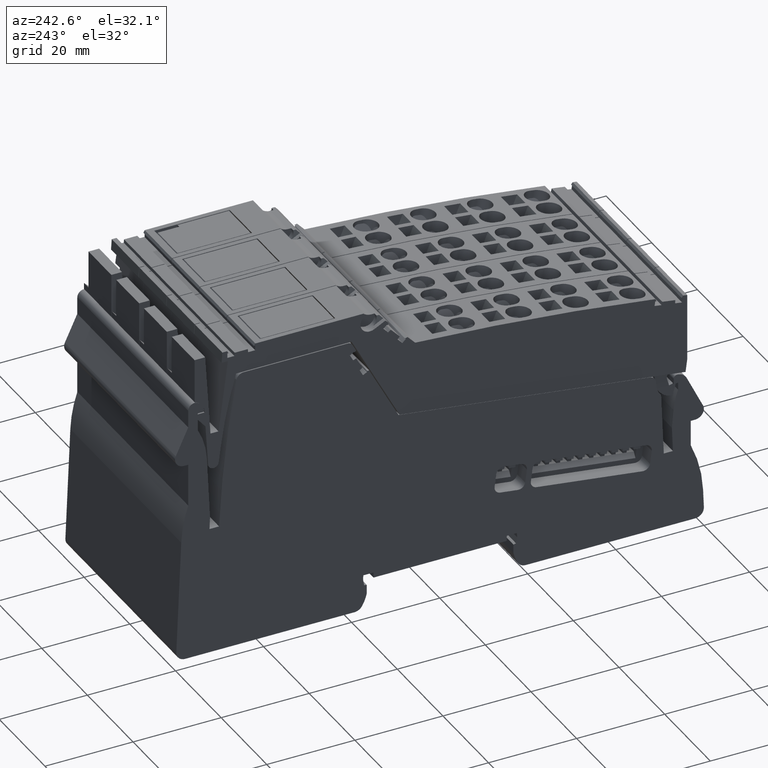
[diagram: clean part render]
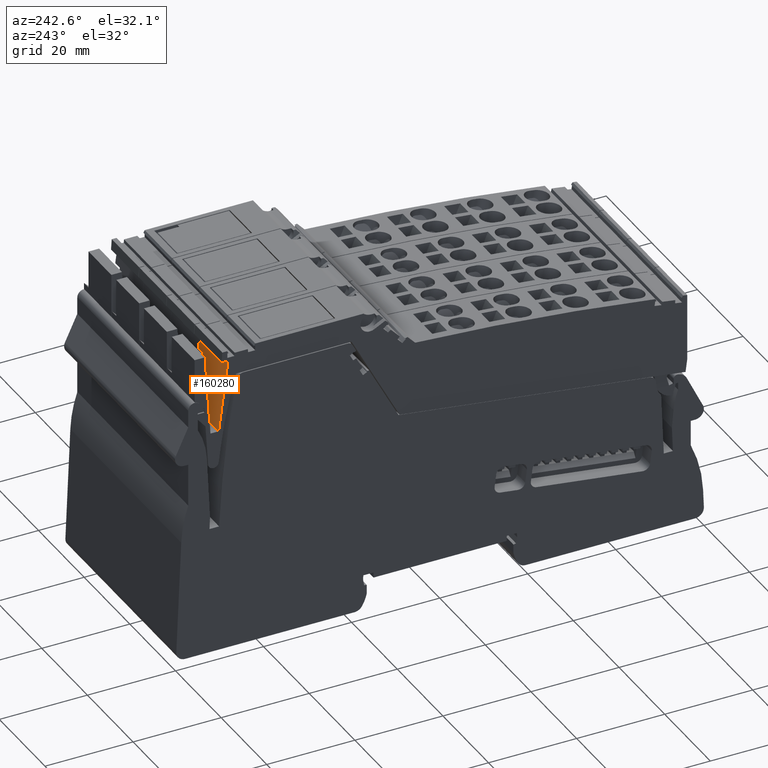
[diagram: same view with one face highlighted and labeled with its STEP entity id]
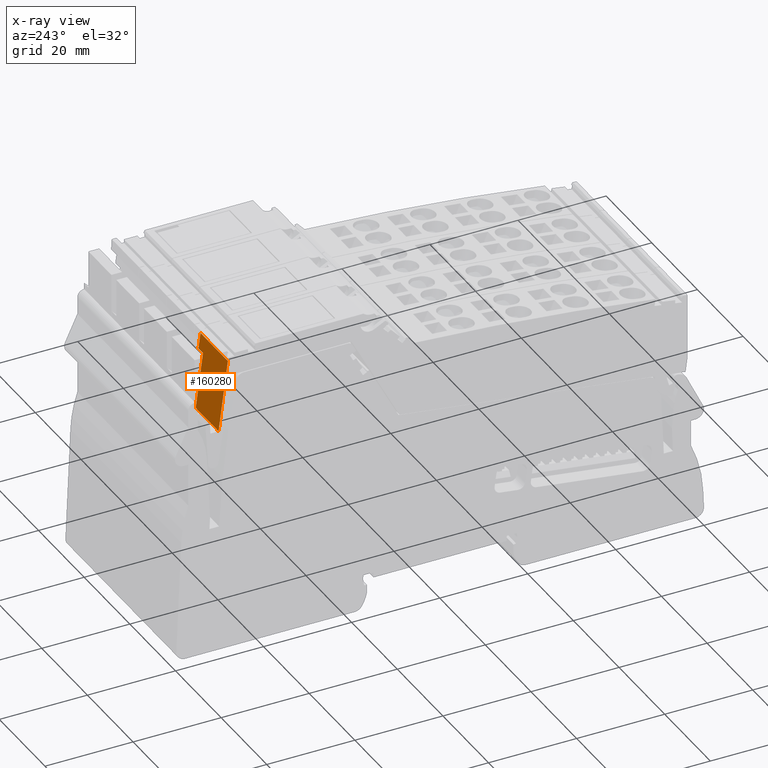
[diagram: x-ray of the same camera — body ghosted, the highlighted face saturated]
A machine part, auxiliary view. The second image highlights one B-rep face of the part: STEP entity #160280.
The next image is the same camera in x-ray: the body ghosted, the highlighted face saturated — about 0% of this face is hidden behind the body in this view.
In plain terms, the highlighted planar face has unit normal (0, -0.9914, -0.1305).
Its self-contained STEP definition (entity closure, byte-faithful):
#3600=CARTESIAN_POINT('',(119.632513868136,65.9866197234248,-47.425));
#3610=VERTEX_POINT('',#3600);
#3640=CARTESIAN_POINT('',(128.319817162075,-1.4210854715202E-14,-47.425)
);
#3650=DIRECTION('',(0.130526192220052,-0.99144486137381,0.));
#3660=VECTOR('',#3650,1.);
#3670=LINE('',#3640,#3660);
#3680=CARTESIAN_POINT('',(117.512908656979,82.0866197234256,-47.425));
#3690=VERTEX_POINT('',#3680);
#3700=EDGE_CURVE('',#3690,#3610,#3670,.T.);
#6730=CARTESIAN_POINT('',(117.512908656979,82.0866197234256,-35.425));
#6740=VERTEX_POINT('',#6730);
#6770=CARTESIAN_POINT('',(128.319817162075,-1.4210854715202E-14,-35.425)
);
#6780=DIRECTION('',(0.130526192220052,-0.99144486137381,0.));
#6790=VECTOR('',#6780,1.);
#6800=LINE('',#6770,#6790);
#6810=CARTESIAN_POINT('',(117.973692398535,78.5866197234246,-35.425));
#6820=VERTEX_POINT('',#6810);
#6830=EDGE_CURVE('',#6740,#6820,#6800,.T.);
#149570=CARTESIAN_POINT('',(117.973692398535,78.5866197234246,-37.425));
#149580=VERTEX_POINT('',#149570);
#149610=CARTESIAN_POINT('',(118.59066468609,73.900249932795,-37.425));
#149620=DIRECTION('',(-0.130526192220052,0.99144486137381,0.));
#149630=VECTOR('',#149620,1.);
#149640=LINE('',#149610,#149630);
#149650=CARTESIAN_POINT('',(119.632513868136,65.9866197234249,-37.425));
#149660=VERTEX_POINT('',#149650);
#149670=EDGE_CURVE('',#149660,#149580,#149640,.T.);
#155730=CARTESIAN_POINT('',(117.973692398535,78.5866197234246,0.));
#155740=DIRECTION('',(8.85927774418128E-33,0.,-1.));
#155750=VECTOR('',#155740,1.);
#155760=LINE('',#155730,#155750);
#155770=EDGE_CURVE('',#6820,#149580,#155760,.T.);
#159920=CARTESIAN_POINT('',(119.632513868136,65.9866197234248,0.));
#159930=DIRECTION('',(-8.85927774418128E-33,6.90131940202395E-49,1.));
#159940=VECTOR('',#159930,1.);
#159950=LINE('',#159920,#159940);
#159960=EDGE_CURVE('',#3610,#149660,#159950,.T.);
#160100=CARTESIAN_POINT('',(117.512908656979,82.0866197234256,-35.425));
#160110=DIRECTION('',(-0.99144486137381,-0.130526192220052,
-8.7834853949519E-33));
#160120=DIRECTION('',(-0.130526192220052,0.99144486137381,0.));
#160130=AXIS2_PLACEMENT_3D('',#160100,#160110,#160120);
#160140=PLANE('',#160130);
#160150=ORIENTED_EDGE('',*,*,#149670,.F.);
#160160=ORIENTED_EDGE('',*,*,#155770,.T.);
#160170=ORIENTED_EDGE('',*,*,#6830,.T.);
#160180=CARTESIAN_POINT('',(117.512908656979,82.0866197234256,0.));
#160190=DIRECTION('',(-8.85927774418128E-33,0.,1.));
#160200=VECTOR('',#160190,1.);
#160210=LINE('',#160180,#160200);
#160220=EDGE_CURVE('',#3690,#6740,#160210,.T.);
#160230=ORIENTED_EDGE('',*,*,#160220,.T.);
#160240=ORIENTED_EDGE('',*,*,#3700,.F.);
#160250=ORIENTED_EDGE('',*,*,#159960,.F.);
#160260=EDGE_LOOP('',(#160250,#160240,#160230,#160170,#160160,#160150));
#160270=FACE_OUTER_BOUND('',#160260,.T.);
#160280=ADVANCED_FACE('',(#160270),#160140,.F.);